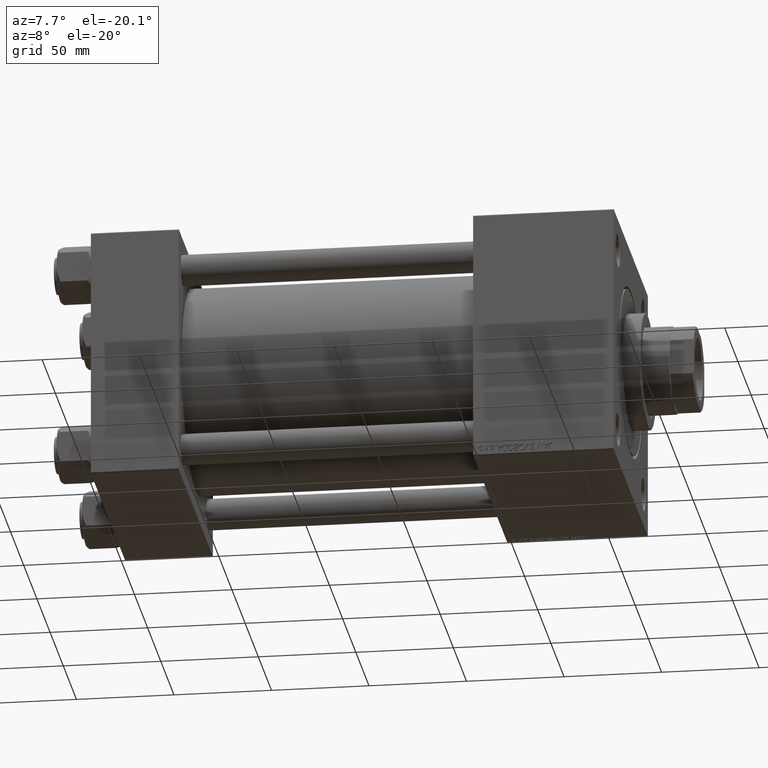
[diagram: clean part render]
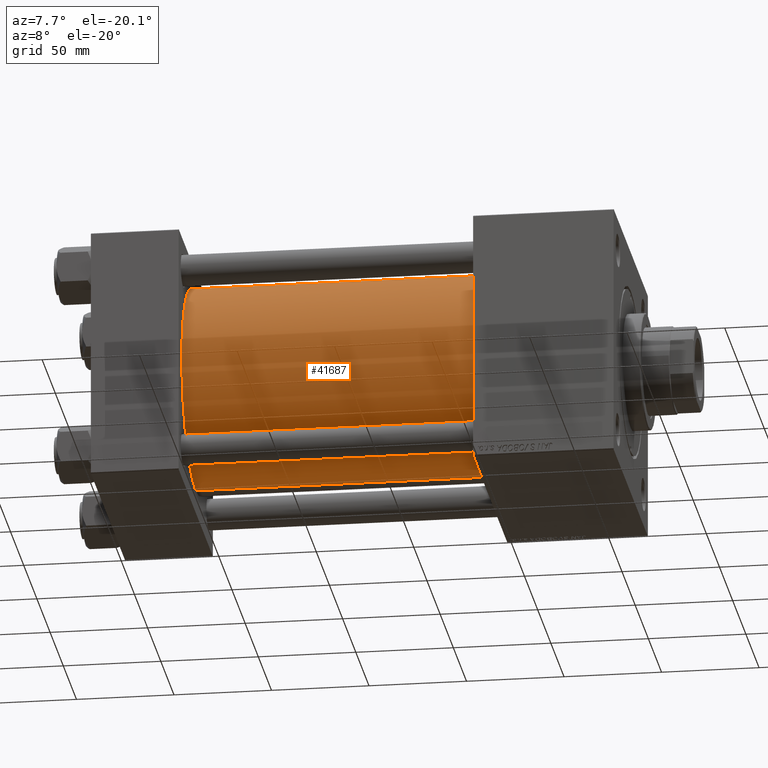
[diagram: same view with one face highlighted and labeled with its STEP entity id]
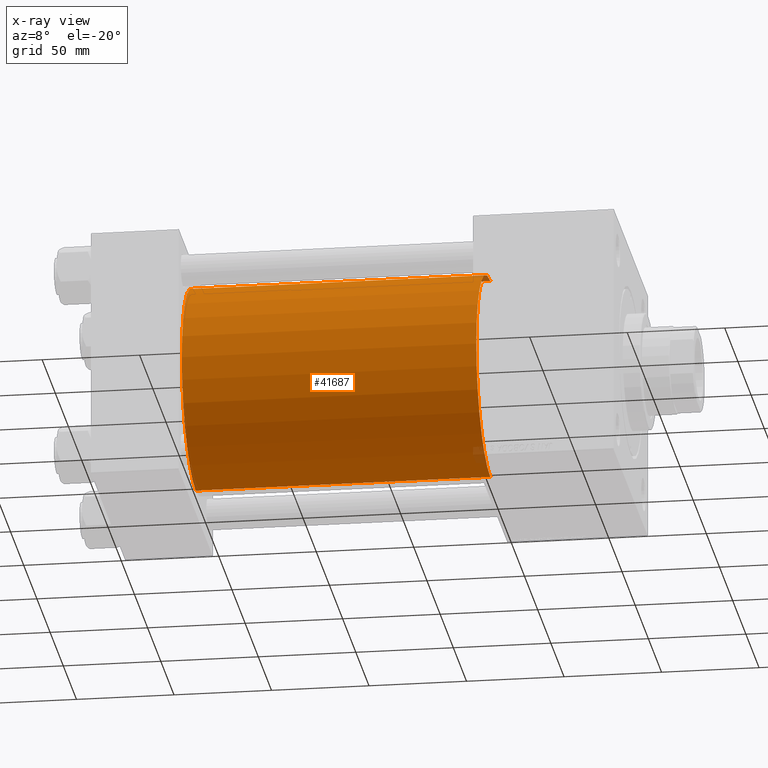
[diagram: x-ray of the same camera — body ghosted, the highlighted face saturated]
A machine part, auxiliary view. The second image highlights one B-rep face of the part: STEP entity #41687.
The next image is the same camera in x-ray: the body ghosted, the highlighted face saturated — about 0% of this face is hidden behind the body in this view.
In plain terms, the highlighted cylindrical surface (partial cylindrical patch) has radius 53 mm, axis along (-1, -0, -0).
Its self-contained STEP definition (entity closure, byte-faithful):
#570 = CARTESIAN_POINT ( 'NONE',  ( 196.0000000000000000, 3.888542821515762466E-15, -53.00000000000000711 ) ) ;
#997 = DIRECTION ( 'NONE',  ( -1.000000000000000000, -0.000000000000000000, -0.000000000000000000 ) ) ;
#1062 = ORIENTED_EDGE ( 'NONE', *, *, #13360, .T. ) ;
#2849 = VERTEX_POINT ( 'NONE', #41974 ) ;
#2916 = DIRECTION ( 'NONE',  ( 0.000000000000000000, 0.000000000000000000, 1.000000000000000000 ) ) ;
#4372 = AXIS2_PLACEMENT_3D ( 'NONE', #13639, #29058, #9519 ) ;
#4407 = CIRCLE ( 'NONE', #32339, 53.00000000000000711 ) ;
#5666 = VERTEX_POINT ( 'NONE', #17017 ) ;
#7888 = VECTOR ( 'NONE', #11177, 1000.000000000000000 ) ;
#8956 = DIRECTION ( 'NONE',  ( 0.000000000000000000, 0.000000000000000000, 1.000000000000000000 ) ) ;
#9120 = ORIENTED_EDGE ( 'NONE', *, *, #42717, .F. ) ;
#9519 = DIRECTION ( 'NONE',  ( 0.000000000000000000, 0.000000000000000000, -1.000000000000000000 ) ) ;
#10116 = DIRECTION ( 'NONE',  ( 1.000000000000000000, -0.000000000000000000, 0.000000000000000000 ) ) ;
#10120 = CIRCLE ( 'NONE', #4372, 53.00000000000000711 ) ;
#11177 = DIRECTION ( 'NONE',  ( -1.000000000000000000, -0.000000000000000000, -0.000000000000000000 ) ) ;
#11957 = LINE ( 'NONE', #46626, #7888 ) ;
#12194 = VECTOR ( 'NONE', #20467, 1000.000000000000000 ) ;
#12577 = AXIS2_PLACEMENT_3D ( 'NONE', #44405, #997, #8956 ) ;
#13360 = EDGE_CURVE ( 'NONE', #2849, #41228, #11957, .T. ) ;
#13639 = CARTESIAN_POINT ( 'NONE',  ( 196.0000000000000000, -2.602085213965210642E-15, 0.000000000000000000 ) ) ;
#13984 = CARTESIAN_POINT ( 'NONE',  ( 44.99999999999998579, -2.602085213965210642E-15, 0.000000000000000000 ) ) ;
#15228 = EDGE_LOOP ( 'NONE', ( #45813, #9120, #1062, #38687 ) ) ;
#17017 = CARTESIAN_POINT ( 'NONE',  ( 44.99999999999998579, 3.888542821515762466E-15, -53.00000000000000711 ) ) ;
#18366 = CARTESIAN_POINT ( 'NONE',  ( 44.99999999999998579, -2.602085213965210642E-15, 53.00000000000000711 ) ) ;
#20467 = DIRECTION ( 'NONE',  ( -1.000000000000000000, -0.000000000000000000, -0.000000000000000000 ) ) ;
#22763 = EDGE_CURVE ( 'NONE', #42611, #5666, #24823, .T. ) ;
#24823 = LINE ( 'NONE', #40496, #12194 ) ;
#29058 = DIRECTION ( 'NONE',  ( 1.000000000000000000, 0.000000000000000000, 0.000000000000000000 ) ) ;
#32339 = AXIS2_PLACEMENT_3D ( 'NONE', #13984, #10116, #2916 ) ;
#36450 = FACE_OUTER_BOUND ( 'NONE', #15228, .T. ) ;
#38687 = ORIENTED_EDGE ( 'NONE', *, *, #44147, .T. ) ;
#40059 = CYLINDRICAL_SURFACE ( 'NONE', #12577, 53.00000000000000711 ) ;
#40496 = CARTESIAN_POINT ( 'NONE',  ( 196.0000000000000000, 3.888542821515762466E-15, -53.00000000000000711 ) ) ;
#41228 = VERTEX_POINT ( 'NONE', #18366 ) ;
#41687 = ADVANCED_FACE ( 'NONE', ( #36450 ), #40059, .T. ) ;
#41974 = CARTESIAN_POINT ( 'NONE',  ( 196.0000000000000000, -2.602085213965210642E-15, 53.00000000000000711 ) ) ;
#42611 = VERTEX_POINT ( 'NONE', #570 ) ;
#42717 = EDGE_CURVE ( 'NONE', #2849, #42611, #10120, .T. ) ;
#44147 = EDGE_CURVE ( 'NONE', #41228, #5666, #4407, .T. ) ;
#44405 = CARTESIAN_POINT ( 'NONE',  ( 196.0000000000000000, -2.602085213965210642E-15, 0.000000000000000000 ) ) ;
#45813 = ORIENTED_EDGE ( 'NONE', *, *, #22763, .F. ) ;
#46626 = CARTESIAN_POINT ( 'NONE',  ( 196.0000000000000000, -2.602085213965210642E-15, 53.00000000000000711 ) ) ;